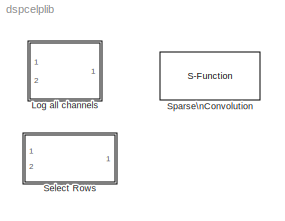
MODEL dspcelplib
KIND library
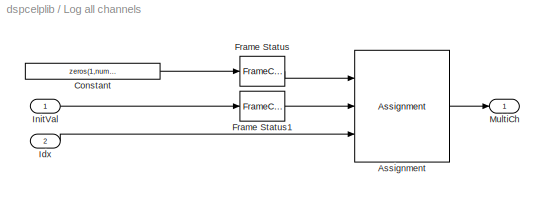
BLOCK [SubSystem] Log all channels
  MaskCallbackString = dspblklogdata;|||
  MaskDisplay = port_label('input',1,'Val');\nport_label('input',2,str);\nport_label('output',1,'Out');
  MaskEnableString = on,off,on,on
  MaskIconFrame = on
  MaskIconOpaque = on
  MaskIconRotate = none
  MaskIconUnits = autoscale
  MaskInitialization = str = dspblklogdata('init');
  MaskPromptString = Output type:|Number of rows:|Number of columns:|Data type:
  MaskSelfModifiable = on
  MaskStyleString = popup(Row vector|Column vector|Matrix),edit,edit,popup(double|int32)
  MaskTabNameString = ,,,
  MaskToolTipString = on,on,on,on
  MaskTunableValueString = off,off,off,off
  MaskValueString = Row vector|40|4|double
  MaskVarAliasString = ,,,
  MaskVariables = outType=@1;numRow=@2;numCol=@3;dType=@4;
  MaskVisibilityString = on,on,on,on
  MinAlgLoopOccurrences = off
  Ports = [2, 1]
  PropExecContextAcrossSSBoundary = on
  RTWSystemCode = Auto
  TreatAsAtomicUnit = off
BLOCK [Assignment] Log all channels/Assignment
  ColumnSrc = External
  ElementSrc = External
  Ports = [3, 1]
  Rows = -1
BLOCK [Constant] Log all channels/Constant
  OutDataTypeMode = double
  Value = zeros(1,numCol)
  VectorParams1D = off
BLOCK [FrameConversion] Log all channels/Frame Status
  OutFrame = Frame based
BLOCK [FrameConversion] Log all channels/Frame Status1
  OutFrame = Frame based
BLOCK [Inport] Log all channels/Idx
  IconDisplay = Port number
  LatchInput = off
  Port = 2
BLOCK [Inport] Log all channels/InitVal
  IconDisplay = Port number
  LatchInput = off
BLOCK [Outport] Log all channels/MultiCh
  BusOutputAsStruct = off
  IconDisplay = Port number
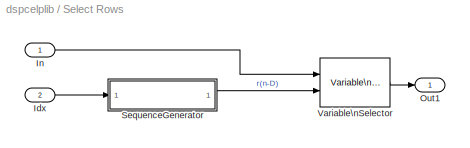
BLOCK [SubSystem] Select Rows
  MaskDescription = Select a number of rows. The row indices are determined by the input index, Idx, and the total number of rows specified in the mask. The selected row indices are Idx, Idx+1, Idx+2, ..., Idx +Nr-1.
  MaskEnableString = on
  MaskIconFrame = on
  MaskIconOpaque = on
  MaskIconRotate = none
  MaskIconUnits = autoscale
  MaskInitialization = blk=gcb;\nconst_blk = [blk,'/SequenceGenerator/DSPConstant'];\nnumROWS = get_param(blk,'numRows');\n\nval = ['[0:(',numROWS,'-1)]' ];\ndspsafe_set_param(const_blk, 'Value', val);
  MaskPromptString = Number of rows (Nr):
  MaskSelfModifiable = on
  MaskStyleString = edit
  MaskToolTipString = on
  MaskTunableValueString = off
  MaskType = Select Rows
  MaskValueString = 40
  MaskVariables = numRows=@1;
  MaskVisibilityString = on
  MinAlgLoopOccurrences = off
  Ports = [2, 1]
  PropExecContextAcrossSSBoundary = on
  RTWSystemCode = Auto
  TreatAsAtomicUnit = off
BLOCK [Inport] Select Rows/Idx
  IconDisplay = Port number
  LatchInput = off
  Port = 2
BLOCK [Inport] Select Rows/In
  IconDisplay = Port number
  LatchInput = off
BLOCK [Outport] Select Rows/Out1
  BusOutputAsStruct = off
  IconDisplay = Port number
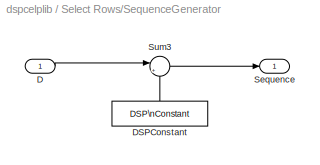
BLOCK [SubSystem] Select Rows/SequenceGenerator
  MinAlgLoopOccurrences = off
  Ports = [1, 1]
  PropExecContextAcrossSSBoundary = on
  RTWSystemCode = Auto
  TreatAsAtomicUnit = off
BLOCK [Inport] Select Rows/SequenceGenerator/D
  IconDisplay = Port number
  LatchInput = off
BLOCK [Reference] Select Rows/SequenceGenerator/DSPConstant  REF=dspsrcs4/DSP\nConstant
  FramebasedOutput = -inf
  InterpretAs1D = -inf
  Ports = [0, 1]
  SampleMode = Discrete
  ShowPortLabels = on
  SourceBlock = dspsrcs4/DSP\nConstant
  SourceType = DSP Constant
  Ts = -inf
  Value = [0:(numRows-1)]
  additionalParams = off
  allowOverrides = on
  continuousOutput = Sample-based
  dataType = Inherit from 'Constant value'
  discreteOutput = Frame-based
  fracBitsMode = Best precision
  framePeriod = -1
  isSigned = on
  numFracBits = 15
  sampTime = 1
  udDataType = sfix(16)
  wordLen = 16
BLOCK [Outport] Select Rows/SequenceGenerator/Sequence
  BusOutputAsStruct = off
  IconDisplay = Port number
BLOCK [Sum] Select Rows/SequenceGenerator/Sum3
  IconShape = round
  InputSameDT = off
  Inputs = |++
  OutDataTypeMode = Inherit via internal rule
  Ports = [2, 1]
BLOCK [Reference] Select Rows/Variable\nSelector  REF=dspindex/Variable\nSelector
  Elements = [1 3]
  IdxMode = Variable
  Ports = [2, 1]
  ShowPortLabels = on
  SourceBlock = dspindex/Variable\nSelector
  SourceType = Variable Selector
  ZerOneIdxMode = One-based
  errmode = Generate Error
  rowsOrCols = Rows
BLOCK [S-Function] Sparse\nConvolution
  FunctionName = sdspspconv
  MaskDescription = Convolve vectors A and B, where A is sparse and has an implicit full length of 40. Enter the sign of the nonzero elements of A at input port PA. Enter the zero-based indices of the nonzero elements of A at input port IA. The vectors input to ports PA and IA must have length 4. The vector input to port B must have length 40. The length of the output vector is 40. This block only supports frame-base...<+10ch>
  MaskDisplay = disp('Sparse\\nConv');\nport_label('input',1, 'PA');\nport_label('input',2, 'IA');\nport_label('input',3, 'B');\n\nport_label('output',1, 'Out');
  MaskHelp = web(dspbhelp);
  MaskIconFrame = on
  MaskIconOpaque = on
  MaskIconRotate = none
  MaskIconUnits = normalized
  MaskSelfModifiable = on
  MaskType = Sparse Convolution
  Ports = [3, 1]
LINE Log all channels/Assignment:1 -> Log all channels/MultiCh:1
LINE Log all channels/Constant:1 -> Log all channels/Frame Status:1
LINE Log all channels/Frame Status1:1 -> Log all channels/Assignment:2
LINE Log all channels/Frame Status:1 -> Log all channels/Assignment:1
LINE Log all channels/Idx:1 -> Log all channels/Assignment:3
LINE Log all channels/InitVal:1 -> Log all channels/Frame Status1:1
LINE Select Rows/Idx:1 -> Select Rows/SequenceGenerator:1
LINE Select Rows/In:1 -> Select Rows/Variable\nSelector:1
LINE Select Rows/SequenceGenerator/D:1 -> Select Rows/SequenceGenerator/Sum3:1
LINE Select Rows/SequenceGenerator/DSPConstant:1 -> Select Rows/SequenceGenerator/Sum3:2
LINE Select Rows/SequenceGenerator/Sum3:1 -> Select Rows/SequenceGenerator/Sequence:1
LINE Select Rows/SequenceGenerator:1 -> Select Rows/Variable\nSelector:2
LINE Select Rows/Variable\nSelector:1 -> Select Rows/Out1:1
